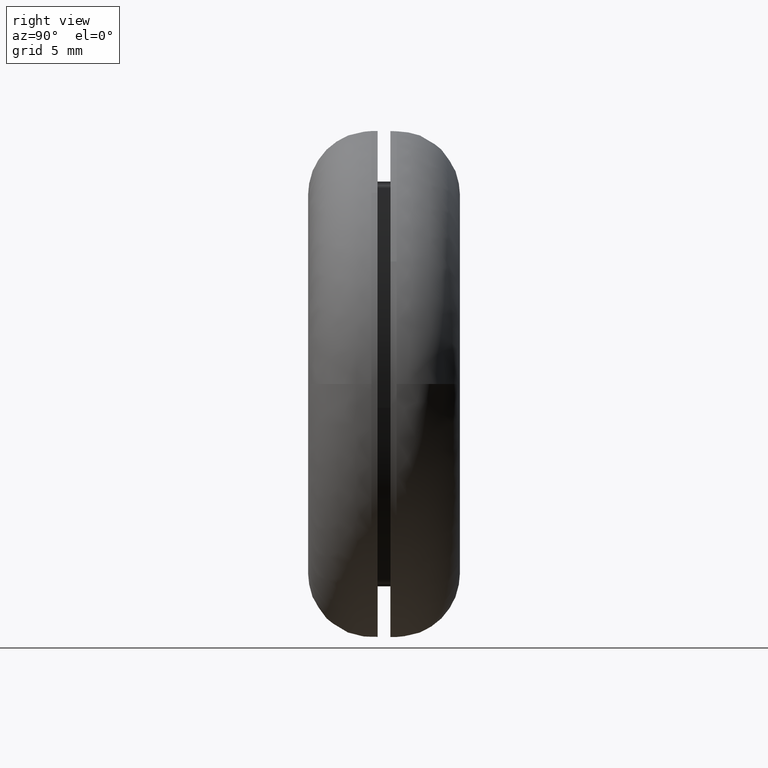
[diagram: clean part render]
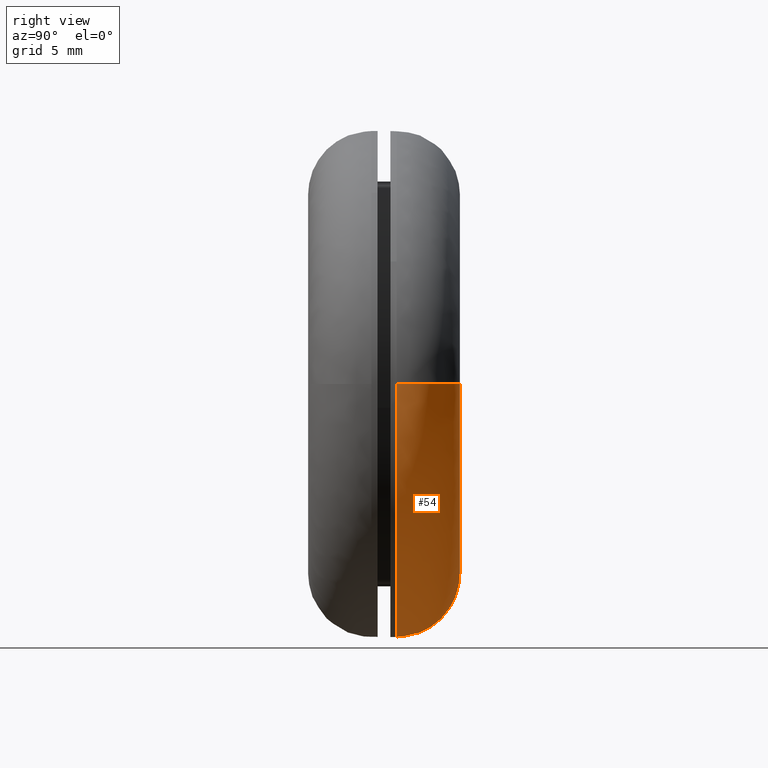
[diagram: same view with one face highlighted and labeled with its STEP entity id]
A machine part, right view. The second image highlights one B-rep face of the part: STEP entity #54.
In plain terms, the highlighted face is a freeform B-spline surface patch.
Its self-contained STEP definition (entity closure, byte-faithful):
#54=ADVANCED_FACE('',(#201),#200,.T.);
#200=( BOUNDED_SURFACE() B_SPLINE_SURFACE( 2,2,((#336,#337,#338,#339,#340),(#341,#342,#343,#344,#345),(#346,#347,#348,#349,#350),(#351,#352,#353,#354,#355),(#356,#357,#358,#359,#360)), .UNSPECIFIED.,.F.,.F.,.F.) B_SPLINE_SURFACE_WITH_KNOTS((3,2,3),(3,2,3),(0.00000000000E+000,5.00000000000E-001,1.00000000000E+000),(0.00000000000E+000,5.00000000000E-001,1.00000000000E+000), .UNSPECIFIED. ) GEOMETRIC_REPRESENTATION_ITEM() RATIONAL_B_SPLINE_SURFACE(((1.00000000000E+000,7.07106780924E-001,1.00000000000E+000,7.07106780924E-001,1.00000000000E+000),(7.07106781187E-001,4.99999999814E-001,7.07106781187E-001,4.99999999814E-001,7.07106781187E-001),(1.00000000000E+000,7.07106780924E-001,1.00000000000E+000,7.07106780924E-001,1.00000000000E+000),(7.07106781187E-001,4.99999999814E-001,7.07106781187E-001,4.99999999814E-001,7.07106781187E-001),(1.00000000000E+000,7.07106780924E-001,1.00000000000E+000,7.07106780924E-001,1.00000000000E+000))) REPRESENTATION_ITEM('') SURFACE() );
#201=FACE_OUTER_BOUND('',#361,.T.);
#336=CARTESIAN_POINT('',(-1.00000000000E+001,6.99999999256E+000,4.77775913375E-013));
#337=CARTESIAN_POINT('',(-9.99999999258E+000,1.19999999963E+001,5.28214605028E-013));
#338=CARTESIAN_POINT('',(-1.49999999963E+001,1.20000000000E+001,5.27602301888E-013));
#339=CARTESIAN_POINT('',(-2.00000000000E+001,1.20000000037E+001,5.26989998748E-013));
#340=CARTESIAN_POINT('',(-2.00000000000E+001,6.99999999999E+000,4.76551307096E-013));
#341=CARTESIAN_POINT('',(-1.00000000000E+001,6.99999999256E+000,-1.00000000000E+001));
#342=CARTESIAN_POINT('',(-9.99999999258E+000,1.19999999963E+001,-9.99999999257E+000));
#343=CARTESIAN_POINT('',(-1.49999999963E+001,1.20000000000E+001,-1.49999999963E+001));
#344=CARTESIAN_POINT('',(-2.00000000000E+001,1.20000000037E+001,-2.00000000000E+001));
#345=CARTESIAN_POINT('',(-2.00000000000E+001,7.00000000000E+000,-2.00000000000E+001));
#346=CARTESIAN_POINT('',(-1.04528313822E-011,6.99999999256E+000,-1.00000000000E+001));
#347=CARTESIAN_POINT('',(-1.11743802302E-011,1.19999999963E+001,-9.99999999257E+000));
#348=CARTESIAN_POINT('',(-1.11740740893E-011,1.20000000000E+001,-1.49999999963E+001));
#349=CARTESIAN_POINT('',(-1.11737679484E-011,1.20000000037E+001,-2.00000000000E+001));
#350=CARTESIAN_POINT('',(-1.04522191003E-011,7.00000000000E+000,-2.00000000000E+001));
#351=CARTESIAN_POINT('',(1.00000000000E+001,6.99999999256E+000,-1.00000000000E+001));
#352=CARTESIAN_POINT('',(9.99999999256E+000,1.19999999963E+001,-9.99999999257E+000));
#353=CARTESIAN_POINT('',(1.49999999963E+001,1.20000000000E+001,-1.49999999963E+001));
#354=CARTESIAN_POINT('',(2.00000000000E+001,1.20000000037E+001,-2.00000000000E+001));
#355=CARTESIAN_POINT('',(2.00000000000E+001,7.00000000000E+000,-2.00000000000E+001));
#356=CARTESIAN_POINT('',(1.00000000000E+001,6.99999999256E+000,4.79000479284E-013));
#357=CARTESIAN_POINT('',(9.99999999256E+000,1.19999999963E+001,5.29439170935E-013));
#358=CARTESIAN_POINT('',(1.49999999963E+001,1.20000000000E+001,5.29439150750E-013));
#359=CARTESIAN_POINT('',(2.00000000000E+001,1.20000000037E+001,5.29439130565E-013));
#360=CARTESIAN_POINT('',(2.00000000000E+001,7.00000000000E+000,4.79000438913E-013));
#361=EDGE_LOOP('',(#474,#475,#476,#477,#478,#479,#480,#481));
#474=ORIENTED_EDGE('',*,*,#532,.F.);
#475=ORIENTED_EDGE('',*,*,#531,.F.);
#476=ORIENTED_EDGE('',*,*,#530,.F.);
#477=ORIENTED_EDGE('',*,*,#527,.F.);
#478=ORIENTED_EDGE('',*,*,#536,.F.);
#479=ORIENTED_EDGE('',*,*,#500,.T.);
#480=ORIENTED_EDGE('',*,*,#502,.T.);
#481=ORIENTED_EDGE('',*,*,#537,.T.);
#500=EDGE_CURVE('',#622,#623,#624,.T.);
#502=EDGE_CURVE('',#623,#630,#637,.T.);
#527=EDGE_CURVE('',#799,#806,#807,.T.);
#530=EDGE_CURVE('',#806,#825,#826,.T.);
#531=EDGE_CURVE('',#825,#832,#833,.T.);
#532=EDGE_CURVE('',#832,#839,#840,.T.);
#536=EDGE_CURVE('',#622,#799,#864,.T.);
#537=EDGE_CURVE('',#630,#839,#870,.T.);
#622=VERTEX_POINT('',#936);
#623=VERTEX_POINT('',#937);
#624=CIRCLE('',#941,1.50000000009E+001);
#630=VERTEX_POINT('',#942);
#637=CIRCLE('',#950,1.50000000009E+001);
#799=VERTEX_POINT('',#1049);
#806=VERTEX_POINT('',#1054);
#807=CIRCLE('',#1058,2.00000000000E+001);
#825=VERTEX_POINT('',#1063);
#826=CIRCLE('',#1067,2.00000000000E+001);
#832=VERTEX_POINT('',#1068);
#833=CIRCLE('',#1072,2.00000000000E+001);
#839=VERTEX_POINT('',#1073);
#840=CIRCLE('',#1077,2.00000000000E+001);
#864=(BOUNDED_CURVE() B_SPLINE_CURVE(2,(#1090,#1091,#1092),.UNSPECIFIED.,.F.,.F.) B_SPLINE_CURVE_WITH_KNOTS((3,3),(5.00000000000E-001,1.00000000000E+000),.UNSPECIFIED.) CURVE() GEOMETRIC_REPRESENTATION_ITEM() RATIONAL_B_SPLINE_CURVE((1.00000000000E+000,7.07106780924E-001,1.00000000000E+000)) REPRESENTATION_ITEM('') );
#870=(BOUNDED_CURVE() B_SPLINE_CURVE(3,(#1093,#1094,#1095,#1096,#1097),.UNSPECIFIED.,.F.,.F.) B_SPLINE_CURVE_WITH_KNOTS((4,1,4),(4.99999892549E-001,7.49999938167E-001,1.00000000000E+000),.UNSPECIFIED.) CURVE() GEOMETRIC_REPRESENTATION_ITEM() RATIONAL_B_SPLINE_CURVE((1.00000000000E+000,1.00000000000E+000,1.00000000000E+000,1.00000000000E+000,1.00000000000E+000)) REPRESENTATION_ITEM('') );
#936=CARTESIAN_POINT('',(-1.50000000013E+001,1.20000000000E+001,5.25936682164E-013));
#937=CARTESIAN_POINT('',(3.77475828373E-015,1.20000000000E+001,-1.50000000018E+001));
#938=CARTESIAN_POINT('',(-3.92094356982E-010,1.20000000000E+001,-8.95110652266E-010));
#939=DIRECTION('',(1.15035026736E-015,-1.00000000000E+000,1.64562803913E-014));
#940=DIRECTION('',(2.61402288704E-011,-1.64562803913E-014,-1.00000000000E+000));
#941=AXIS2_PLACEMENT_3D('',#938,#939,#940);
#942=CARTESIAN_POINT('',(1.49999999197E+001,1.20000000000E+001,1.55674444985E-003));
#947=CARTESIAN_POINT('',(-3.92094356982E-010,1.20000000000E+001,-8.95110652266E-010));
#948=DIRECTION('',(1.15035026736E-015,-1.00000000000E+000,1.64562803913E-014));
#949=DIRECTION('',(2.61402288704E-011,-1.64562803913E-014,-1.00000000000E+000));
#950=AXIS2_PLACEMENT_3D('',#947,#948,#949);
#1049=CARTESIAN_POINT('',(-2.00000000000E+001,6.99999999995E+000,4.76481987546E-013));
#1054=CARTESIAN_POINT('',(-1.74989285489E+001,6.99999999633E+000,-9.68439464510E+000));
#1055=CARTESIAN_POINT('',(-1.95399252334E-014,7.00000000008E+000,-2.84217094304E-014));
#1056=DIRECTION('',(6.33859165819E-012,-1.00000000000E+000,3.75934231561E-010));
#1057=DIRECTION('',(9.99921044204E-001,1.61408664212E-012,-1.25660398839E-002));
#1058=AXIS2_PLACEMENT_3D('',#1055,#1056,#1057);
#1063=CARTESIAN_POINT('',(0.00000000000E+000,7.00000000000E+000,-2.00000000000E+001));
#1064=CARTESIAN_POINT('',(-1.95399252334E-014,7.00000000008E+000,-2.84217094304E-014));
#1065=DIRECTION('',(6.33859165819E-012,-1.00000000000E+000,3.75934231561E-010));
#1066=DIRECTION('',(9.99921044204E-001,1.61408664212E-012,-1.25660398839E-002));
#1067=AXIS2_PLACEMENT_3D('',#1064,#1065,#1066);
#1068=CARTESIAN_POINT('',(1.99513134768E+001,7.00000000005E+000,-1.39466503151E+000));
#1069=CARTESIAN_POINT('',(-1.67510449955E-012,7.00000000005E+000,1.79944947831E-012));
#1070=DIRECTION('',(-3.14018491732E-017,-1.00000000000E+000,2.54281040668E-012));
#1071=DIRECTION('',(-8.37552249777E-014,2.54281040668E-012,1.00000000000E+000));
#1072=AXIS2_PLACEMENT_3D('',#1069,#1070,#1071);
#1073=CARTESIAN_POINT('',(2.00000000000E+001,6.99999999995E+000,4.05240067178E-006));
#1074=CARTESIAN_POINT('',(2.68585154117E-012,7.00000000060E+000,-1.95399252334E-014));
#1075=DIRECTION('',(-3.23858086441E-011,-1.00000000000E+000,-6.56679517632E-011));
#1076=DIRECTION('',(-9.97565673840E-001,2.77277312222E-011,6.97332515756E-002));
#1077=AXIS2_PLACEMENT_3D('',#1074,#1075,#1076);
#1090=CARTESIAN_POINT('',(-1.49999999963E+001,1.20000000000E+001,5.27602301888E-013));
#1091=CARTESIAN_POINT('',(-2.00000000000E+001,1.20000000037E+001,5.26989998748E-013));
#1092=CARTESIAN_POINT('',(-2.00000000000E+001,6.99999999999E+000,4.76551307096E-013));
#1093=CARTESIAN_POINT('',(1.49999984767E+001,1.20000000000E+001,5.31130694911E-013));
#1094=CARTESIAN_POINT('',(1.62905605675E+001,1.20092214871E+001,5.31596884739E-013));
#1095=CARTESIAN_POINT('',(1.89211758385E+001,1.09211771207E+001,5.21348007615E-013));
#1096=CARTESIAN_POINT('',(2.00092210975E+001,8.29056217700E+000,4.95045534097E-013));
#1097=CARTESIAN_POINT('',(2.00000000000E+001,7.00000000000E+000,4.81984822424E-013));